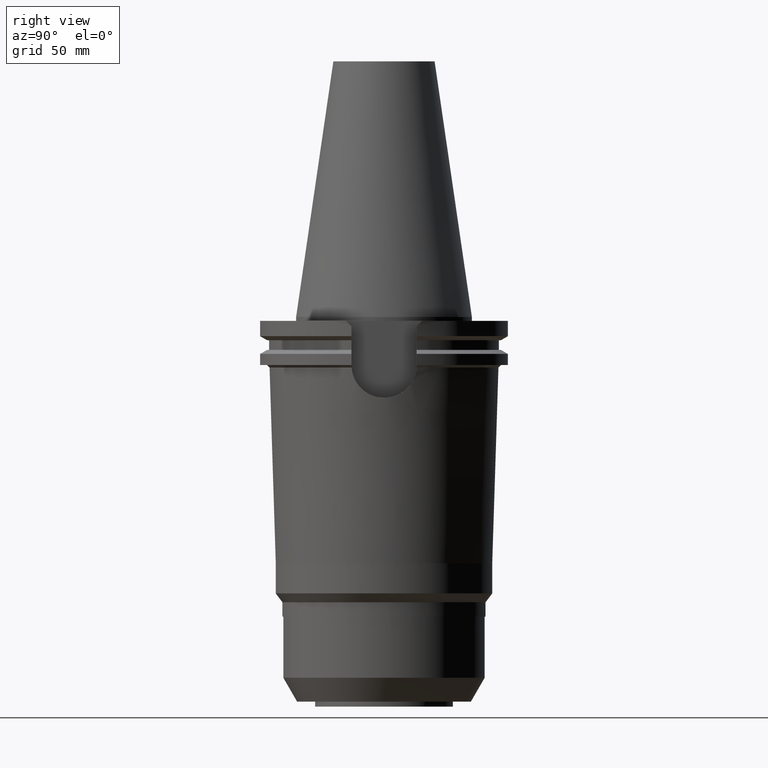
[diagram: clean part render]
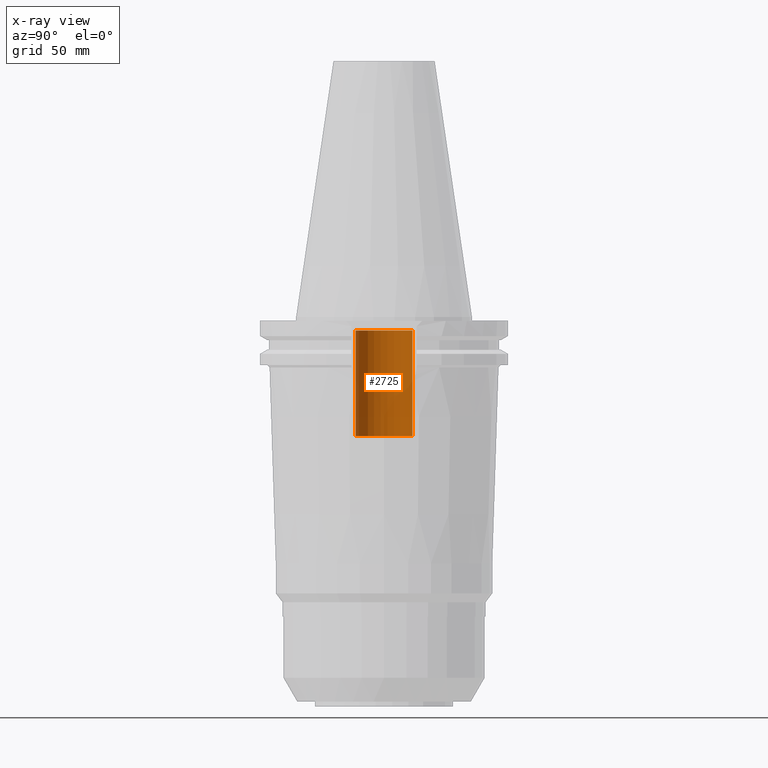
[diagram: x-ray — body ghosted, one internal face saturated and labeled with its STEP entity id]
A machine part, right view, then the same camera in x-ray: the body is ghosted and one INTERNAL B-rep face — a face not visible from any outside direction — is saturated and labeled: STEP entity #2725.
In plain terms, the highlighted cylindrical surface (edge-blend (fillet) strip) has radius 11.25 mm, axis along (0, 0, -1).
Its self-contained STEP definition (entity closure, byte-faithful):
#1336=CARTESIAN_POINT('',(0.E0,2.625887666732E-14,-4.74E1));
#1337=DIRECTION('',(0.E0,0.E0,-1.E0));
#1338=DIRECTION('',(0.E0,-1.E0,0.E0));
#1339=AXIS2_PLACEMENT_3D('',#1336,#1337,#1338);
#1352=DIRECTION('',(0.E0,0.E0,1.E0));
#1353=VECTOR('',#1352,4.2E1);
#1354=CARTESIAN_POINT('',(0.E0,-1.125E1,-4.74E1));
#1355=LINE('',#1354,#1353);
#1359=DIRECTION('',(0.E0,0.E0,1.E0));
#1360=VECTOR('',#1359,4.2E1);
#1361=CARTESIAN_POINT('',(0.E0,1.125E1,-4.74E1));
#1362=LINE('',#1361,#1360);
#1374=CARTESIAN_POINT('',(0.E0,2.625887666732E-14,-5.4E0));
#1375=DIRECTION('',(0.E0,0.E0,1.E0));
#1376=DIRECTION('',(0.E0,1.E0,0.E0));
#1377=AXIS2_PLACEMENT_3D('',#1374,#1375,#1376);
#1512=CARTESIAN_POINT('',(0.E0,-1.125E1,-5.4E0));
#1513=CARTESIAN_POINT('',(0.E0,1.125E1,-5.4E0));
#1514=VERTEX_POINT('',#1512);
#1515=VERTEX_POINT('',#1513);
#1516=CARTESIAN_POINT('',(0.E0,1.125E1,-4.74E1));
#1517=VERTEX_POINT('',#1516);
#1518=CARTESIAN_POINT('',(0.E0,-1.125E1,-4.74E1));
#1519=VERTEX_POINT('',#1518);
#2711=CARTESIAN_POINT('',(0.E0,2.625887666732E-14,1.1442E2));
#2712=DIRECTION('',(0.E0,0.E0,-1.E0));
#2713=DIRECTION('',(0.E0,-1.E0,0.E0));
#2714=AXIS2_PLACEMENT_3D('',#2711,#2712,#2713);
#2715=CYLINDRICAL_SURFACE('',#2714,1.125E1);
#2717=ORIENTED_EDGE('',*,*,#2716,.F.);
#2718=ORIENTED_EDGE('',*,*,#2704,.F.);
#2720=ORIENTED_EDGE('',*,*,#2719,.T.);
#2722=ORIENTED_EDGE('',*,*,#2721,.F.);
#2723=EDGE_LOOP('',(#2717,#2718,#2720,#2722));
#2724=FACE_OUTER_BOUND('',#2723,.F.);
#1340=CIRCLE('',#1339,1.125E1);
#1378=CIRCLE('',#1377,1.125E1);
#2704=EDGE_CURVE('',#1519,#1517,#1340,.T.);
#2716=EDGE_CURVE('',#1517,#1515,#1362,.T.);
#2719=EDGE_CURVE('',#1519,#1514,#1355,.T.);
#2721=EDGE_CURVE('',#1515,#1514,#1378,.T.);
#2725=ADVANCED_FACE('',(#2724),#2715,.F.);